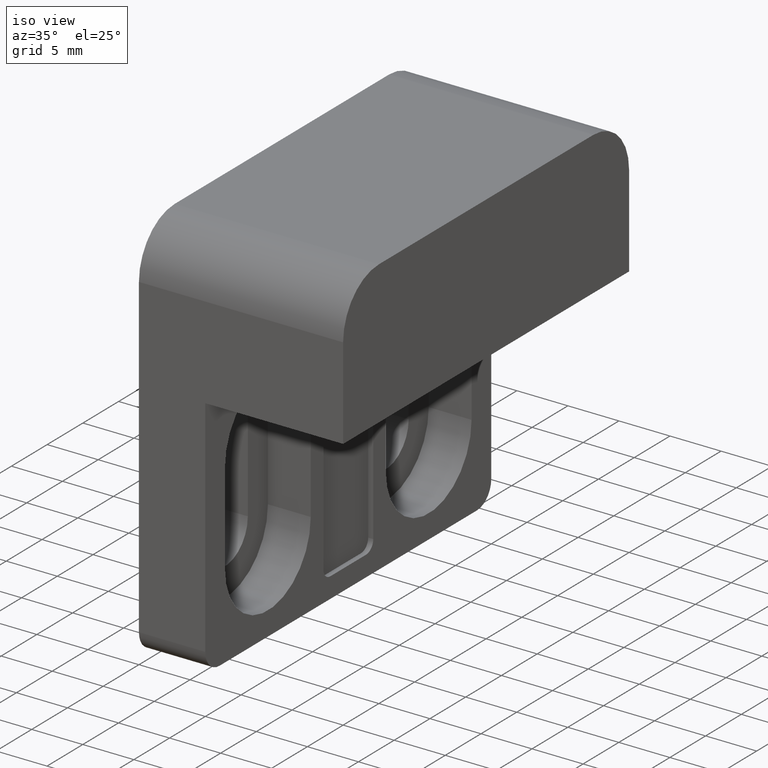
[diagram: clean part render]
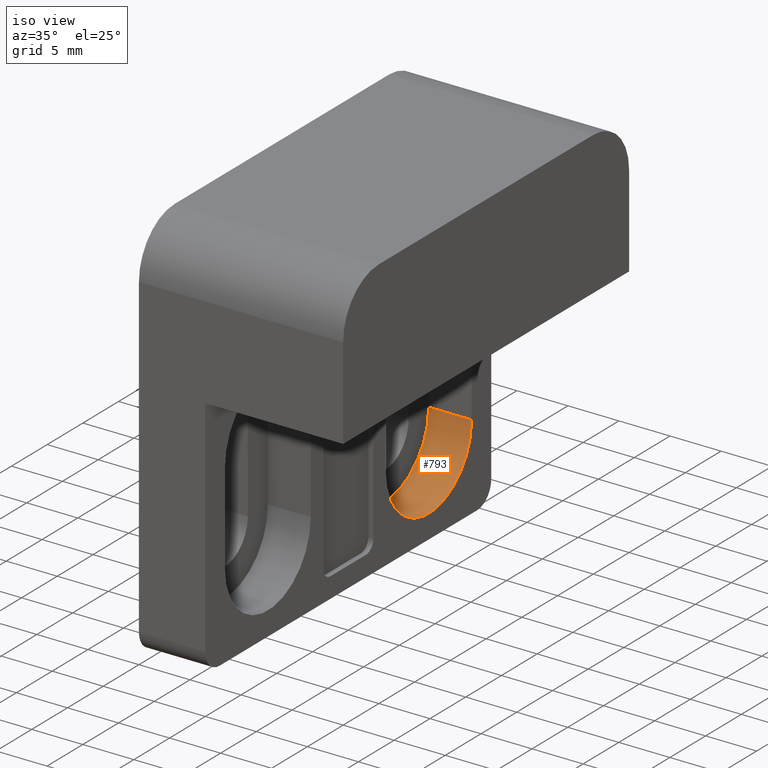
[diagram: same view with one face highlighted and labeled with its STEP entity id]
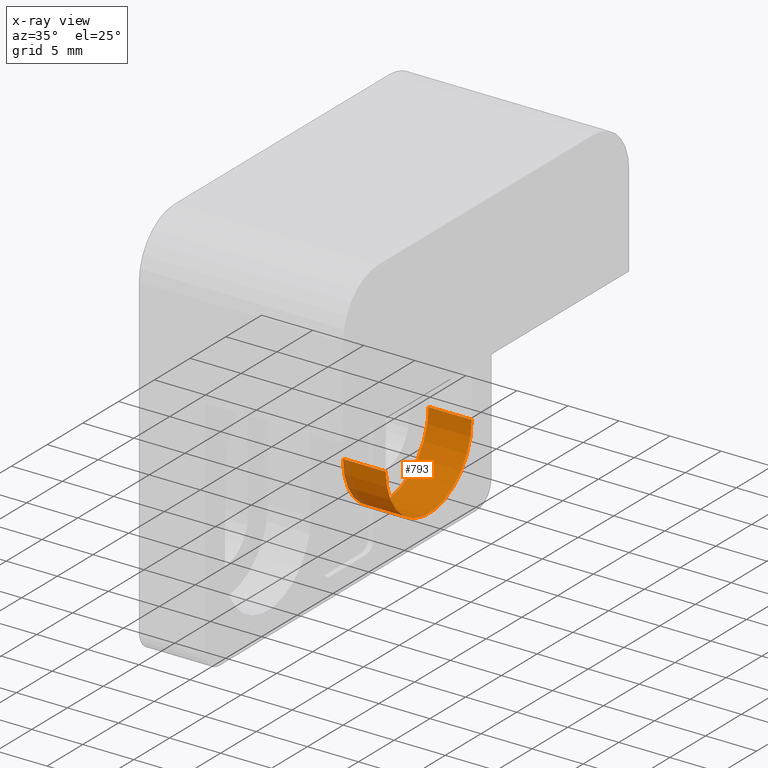
[diagram: x-ray of the same camera — body ghosted, the highlighted face saturated]
A machine part, iso view. The second image highlights one B-rep face of the part: STEP entity #793.
The next image is the same camera in x-ray: the body ghosted, the highlighted face saturated — about 4% of this face is hidden behind the body in this view.
In plain terms, the highlighted cylindrical surface (partial cylindrical patch) has radius 6 mm, axis along (-1, 0, 0).
Its self-contained STEP definition (entity closure, byte-faithful):
#33=CIRCLE('',#850,5.99999999999999);
#34=CIRCLE('',#851,5.99999999999999);
#60=CYLINDRICAL_SURFACE('',#849,5.99999999999999);
#87=FACE_OUTER_BOUND('',#131,.T.);
#131=EDGE_LOOP('',(#589,#590,#591,#592));
#198=LINE('',#1223,#280);
#200=LINE('',#1229,#282);
#280=VECTOR('',#984,4.2);
#282=VECTOR('',#990,4.2);
#359=VERTEX_POINT('',#1220);
#360=VERTEX_POINT('',#1222);
#361=VERTEX_POINT('',#1226);
#362=VERTEX_POINT('',#1228);
#448=EDGE_CURVE('',#359,#360,#198,.T.);
#450=EDGE_CURVE('',#361,#359,#33,.T.);
#451=EDGE_CURVE('',#361,#362,#200,.T.);
#452=EDGE_CURVE('',#362,#360,#34,.T.);
#589=ORIENTED_EDGE('',*,*,#450,.F.);
#590=ORIENTED_EDGE('',*,*,#451,.T.);
#591=ORIENTED_EDGE('',*,*,#452,.T.);
#592=ORIENTED_EDGE('',*,*,#448,.F.);
#793=ADVANCED_FACE('',(#87),#60,.F.);
#849=AXIS2_PLACEMENT_3D('',#1225,#986,#987);
#850=AXIS2_PLACEMENT_3D('',#1227,#988,#989);
#851=AXIS2_PLACEMENT_3D('',#1230,#991,#992);
#984=DIRECTION('',(-1.,0.,0.));
#986=DIRECTION('center_axis',(-1.,0.,0.));
#987=DIRECTION('ref_axis',(0.,-1.,7.40148683083438E-16));
#988=DIRECTION('center_axis',(-1.,0.,1.8503717077086E-16));
#989=DIRECTION('ref_axis',(0.,-1.,7.40148683083438E-16));
#990=DIRECTION('',(-1.,0.,0.));
#991=DIRECTION('center_axis',(-1.,0.,1.8503717077086E-16));
#992=DIRECTION('ref_axis',(1.36955018267537E-31,-1.,7.40148683083438E-16));
#1220=CARTESIAN_POINT('',(-13.5,5.25,-29.7));
#1222=CARTESIAN_POINT('',(-17.7,5.25,-29.7));
#1223=CARTESIAN_POINT('',(-13.5,5.25,-29.7));
#1225=CARTESIAN_POINT('Origin',(-13.5,11.25,-29.7));
#1226=CARTESIAN_POINT('',(-13.5,17.25,-29.7));
#1227=CARTESIAN_POINT('Origin',(-13.5,11.25,-29.7));
#1228=CARTESIAN_POINT('',(-17.7,17.25,-29.7));
#1229=CARTESIAN_POINT('',(-13.5,17.25,-29.7));
#1230=CARTESIAN_POINT('Origin',(-17.7,11.25,-29.7));